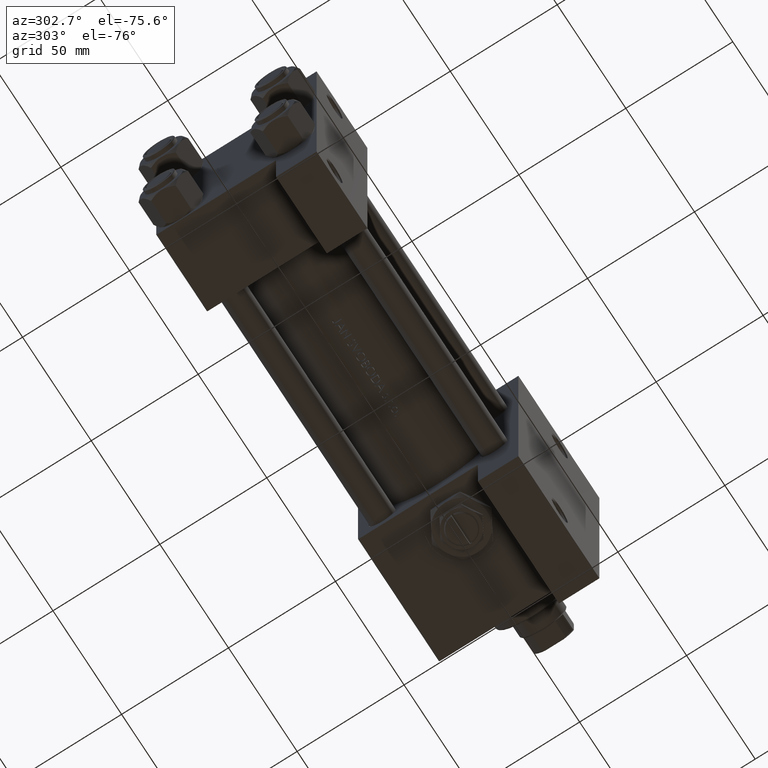
[diagram: clean part render]
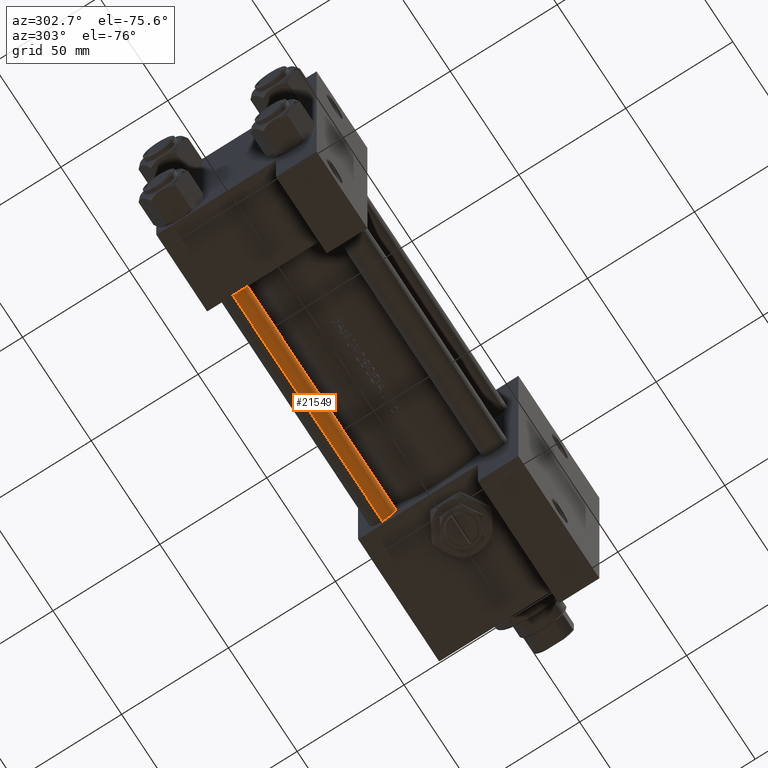
[diagram: same view with one face highlighted and labeled with its STEP entity id]
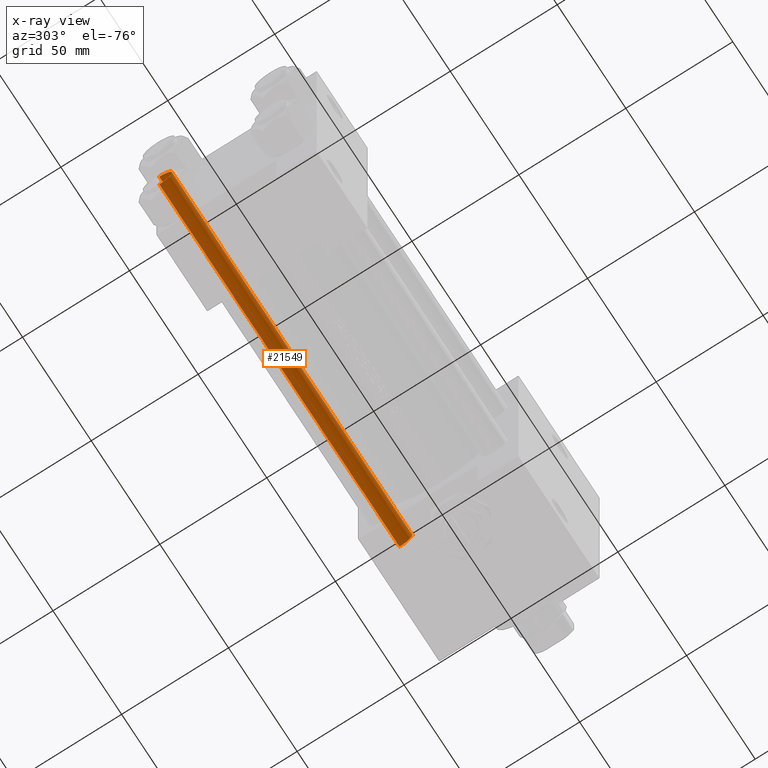
[diagram: x-ray of the same camera — body ghosted, the highlighted face saturated]
A machine part, auxiliary view. The second image highlights one B-rep face of the part: STEP entity #21549.
The next image is the same camera in x-ray: the body ghosted, the highlighted face saturated — about 0% of this face is hidden behind the body in this view.
In plain terms, the highlighted cylindrical surface (edge-blend (fillet) strip) has radius 6 mm, axis along (1, -0, -0).
Its self-contained STEP definition (entity closure, byte-faithful):
#1456 = CYLINDRICAL_SURFACE ( 'NONE', #47592, 6.000000000000000888 ) ;
#1944 = VERTEX_POINT ( 'NONE', #18891 ) ;
#5208 = ORIENTED_EDGE ( 'NONE', *, *, #8810, .F. ) ;
#5214 = DIRECTION ( 'NONE',  ( -0.000000000000000000, -0.000000000000000000, 1.000000000000000000 ) ) ;
#5454 = DIRECTION ( 'NONE',  ( -1.000000000000000000, 0.000000000000000000, 0.000000000000000000 ) ) ;
#6054 = CARTESIAN_POINT ( 'NONE',  ( 6.000000000000000888, 7.347880794884120722E-16, 0.4999999999999449329 ) ) ;
#6081 = CIRCLE ( 'NONE', #33911, 6.000000000000000888 ) ;
#6698 = DIRECTION ( 'NONE',  ( 0.000000000000000000, 0.000000000000000000, -1.000000000000000000 ) ) ;
#8810 = EDGE_CURVE ( 'NONE', #25655, #23370, #21304, .T. ) ;
#8836 = LINE ( 'NONE', #39489, #43478 ) ;
#9084 = DIRECTION ( 'NONE',  ( -0.000000000000000000, -0.000000000000000000, -1.000000000000000000 ) ) ;
#10435 = DIRECTION ( 'NONE',  ( 1.000000000000000000, 0.000000000000000000, 0.000000000000000000 ) ) ;
#10853 = ORIENTED_EDGE ( 'NONE', *, *, #13363, .T. ) ;
#12925 = CARTESIAN_POINT ( 'NONE',  ( 0.000000000000000000, 0.000000000000000000, 176.0000000000000000 ) ) ;
#13363 = EDGE_CURVE ( 'NONE', #25655, #1944, #6081, .T. ) ;
#14418 = CARTESIAN_POINT ( 'NONE',  ( -6.000000000000000888, 0.000000000000000000, 0.4999999999999449329 ) ) ;
#16284 = VECTOR ( 'NONE', #29028, 1000.000000000000000 ) ;
#16918 = EDGE_CURVE ( 'NONE', #1944, #39365, #8836, .T. ) ;
#18891 = CARTESIAN_POINT ( 'NONE',  ( -6.000000000000000888, 0.000000000000000000, 175.5000000000000000 ) ) ;
#21304 = LINE ( 'NONE', #32517, #16284 ) ;
#21549 = ADVANCED_FACE ( 'NONE', ( #32839 ), #1456, .T. ) ;
#22397 = CARTESIAN_POINT ( 'NONE',  ( 0.000000000000000000, 0.000000000000000000, 175.5000000000000000 ) ) ;
#23370 = VERTEX_POINT ( 'NONE', #6054 ) ;
#23822 = CIRCLE ( 'NONE', #45269, 6.000000000000000888 ) ;
#23947 = EDGE_LOOP ( 'NONE', ( #5208, #10853, #40700, #45204 ) ) ;
#24077 = EDGE_CURVE ( 'NONE', #39365, #23370, #23822, .T. ) ;
#25655 = VERTEX_POINT ( 'NONE', #31751 ) ;
#28132 = DIRECTION ( 'NONE',  ( 1.000000000000000000, 0.000000000000000000, 0.000000000000000000 ) ) ;
#29028 = DIRECTION ( 'NONE',  ( -0.000000000000000000, -0.000000000000000000, -1.000000000000000000 ) ) ;
#31751 = CARTESIAN_POINT ( 'NONE',  ( 6.000000000000000888, 7.347880794884120722E-16, 175.5000000000000000 ) ) ;
#32517 = CARTESIAN_POINT ( 'NONE',  ( 6.000000000000000888, 7.347880794884120722E-16, 176.0000000000000000 ) ) ;
#32839 = FACE_OUTER_BOUND ( 'NONE', #23947, .T. ) ;
#33911 = AXIS2_PLACEMENT_3D ( 'NONE', #22397, #6698, #10435 ) ;
#35607 = DIRECTION ( 'NONE',  ( -0.000000000000000000, -0.000000000000000000, -1.000000000000000000 ) ) ;
#36100 = CARTESIAN_POINT ( 'NONE',  ( 0.000000000000000000, 0.000000000000000000, 0.4999999999999449329 ) ) ;
#39365 = VERTEX_POINT ( 'NONE', #14418 ) ;
#39489 = CARTESIAN_POINT ( 'NONE',  ( -6.000000000000000888, 0.000000000000000000, 176.0000000000000000 ) ) ;
#40700 = ORIENTED_EDGE ( 'NONE', *, *, #16918, .T. ) ;
#43478 = VECTOR ( 'NONE', #9084, 1000.000000000000000 ) ;
#45204 = ORIENTED_EDGE ( 'NONE', *, *, #24077, .T. ) ;
#45269 = AXIS2_PLACEMENT_3D ( 'NONE', #36100, #5214, #28132 ) ;
#47592 = AXIS2_PLACEMENT_3D ( 'NONE', #12925, #35607, #5454 ) ;